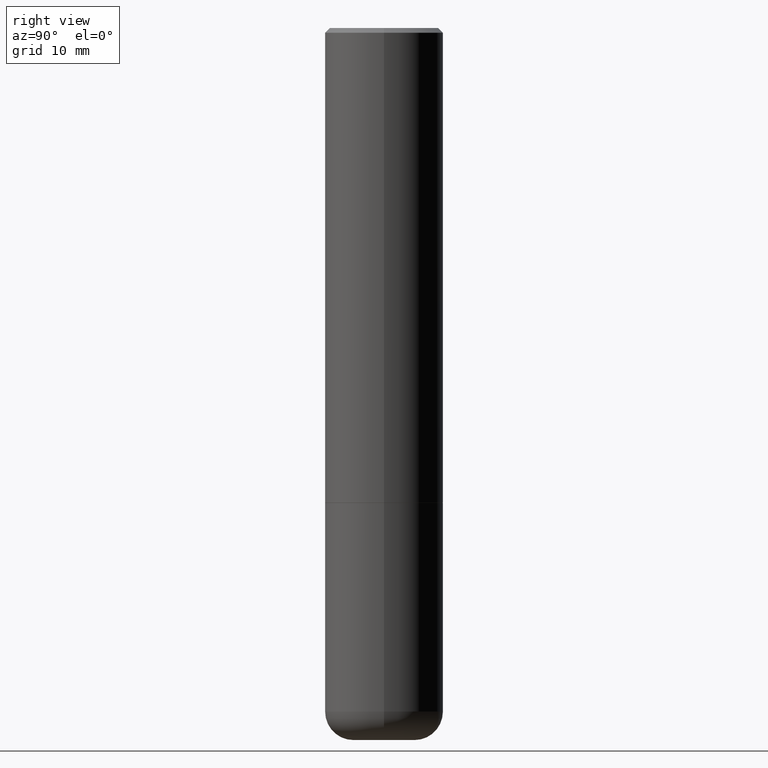
[diagram: clean part render]
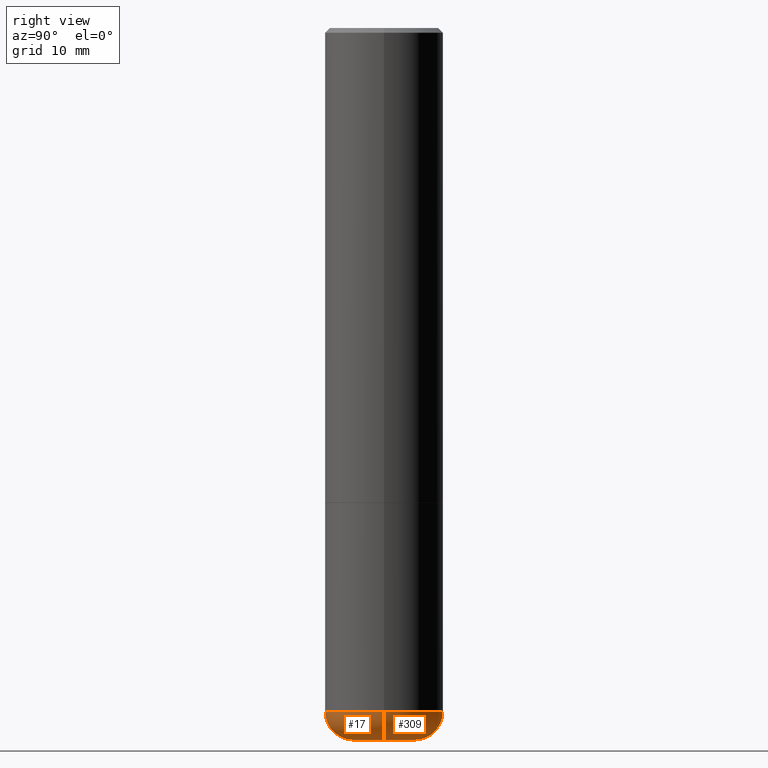
[diagram: same view with one multi-face feature highlighted, each face labeled with its STEP entity id]
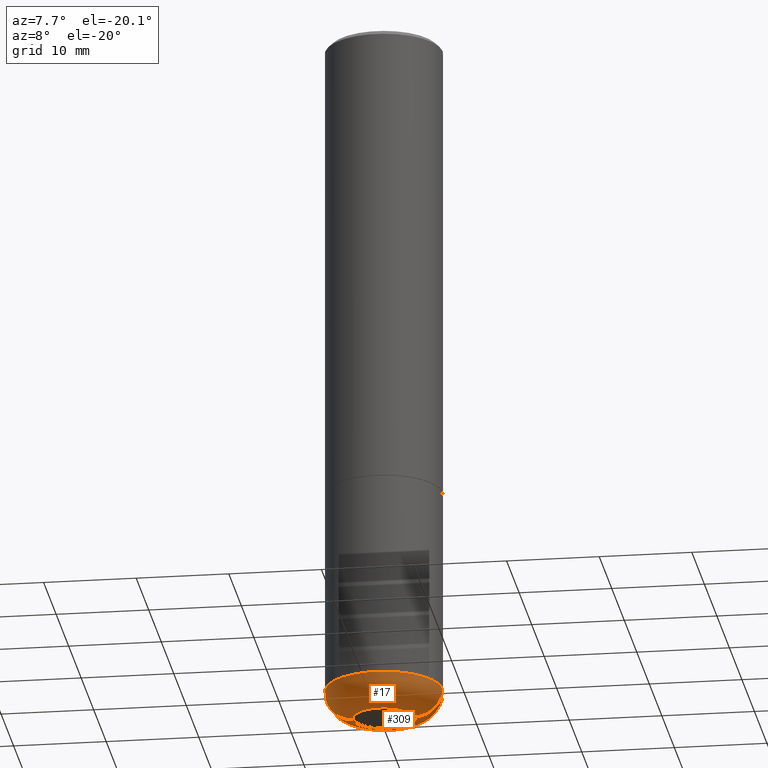
[diagram: same view with one multi-face feature highlighted, each face labeled with its STEP entity id]
A machine part, right view. The highlighted faces form ONE feature: a constant-radius fillet chain: 2 tangent blend faces with common blend radius 3.048 mm. The faces share edges in the B-rep.
A second angle (auxiliary view) of the same feature is appended — it is thin or edge-on in the first view.
Their STEP definitions:
[1] entity #309 (Torus):
#12 = AXIS2_PLACEMENT_3D ( 'NONE', #133, #42, #79 ) ;
#32 = ORIENTED_EDGE ( 'NONE', *, *, #162, .F. ) ;
#41 = EDGE_LOOP ( 'NONE', ( #322, #153, #128, #32 ) ) ;
#42 = DIRECTION ( 'NONE',  ( -2.445468806185136597E-29, 3.491481338843145583E-15, 1.000000000000000000 ) ) ;
#43 = EDGE_CURVE ( 'NONE', #410, #373, #330, .T. ) ;
#44 = CIRCLE ( 'NONE', #343, 0.1300000000000000044 ) ;
#60 = DIRECTION ( 'NONE',  ( 7.105427357601001859E-15, 1.000000000000000000, -3.491481338843145583E-15 ) ) ;
#64 = AXIS2_PLACEMENT_3D ( 'NONE', #236, #60, #183 ) ;
#66 = DIRECTION ( 'NONE',  ( -2.445468806185136597E-29, 3.491481338843145583E-15, 1.000000000000000000 ) ) ;
#79 = DIRECTION ( 'NONE',  ( 1.000000000000000000, -6.982962677686265133E-15, 4.883557194083112340E-29 ) ) ;
#128 = ORIENTED_EDGE ( 'NONE', *, *, #360, .F. ) ;
#133 = CARTESIAN_POINT ( 'NONE',  ( 7.042950161813194609E-29, -1.005546625586826130E-14, -2.880000000000000338 ) ) ;
#144 = TOROIDAL_SURFACE ( 'NONE', #12, 0.1300000000000000044, 0.1199999999999999123 ) ;
#153 = ORIENTED_EDGE ( 'NONE', *, *, #43, .T. ) ;
#160 = VERTEX_POINT ( 'NONE', #255 ) ;
#161 = CIRCLE ( 'NONE', #200, 0.1199999999999999262 ) ;
#162 = EDGE_CURVE ( 'NONE', #286, #160, #161, .T. ) ;
#183 = DIRECTION ( 'NONE',  ( -1.000000000000000000, 7.105427357601003436E-15, 0.000000000000000000 ) ) ;
#198 = CARTESIAN_POINT ( 'NONE',  ( -0.1300000000000000044, -8.914923938254659640E-15, -3.000000000000000444 ) ) ;
#200 = AXIS2_PLACEMENT_3D ( 'NONE', #355, #321, #289 ) ;
#202 = CIRCLE ( 'NONE', #394, 0.2500000000000000000 ) ;
#236 = CARTESIAN_POINT ( 'NONE',  ( -0.1300000000000000044, -9.131760699380130235E-15, -2.880000000000000338 ) ) ;
#248 = EDGE_CURVE ( 'NONE', #286, #410, #44, .T. ) ;
#250 = DIRECTION ( 'NONE',  ( 1.000000000000000000, -6.982962677686273810E-15, 0.000000000000000000 ) ) ;
#255 = CARTESIAN_POINT ( 'NONE',  ( 0.2499999999999999722, -1.180120692528982640E-14, -2.880000000000000338 ) ) ;
#265 = CARTESIAN_POINT ( 'NONE',  ( 7.042950161813194609E-29, -1.005546625586826130E-14, -2.880000000000000338 ) ) ;
#283 = CARTESIAN_POINT ( 'NONE',  ( 7.336406418555409790E-29, -1.047444401652943635E-14, -3.000000000000000444 ) ) ;
#286 = VERTEX_POINT ( 'NONE', #318 ) ;
#289 = DIRECTION ( 'NONE',  ( 1.000000000000000000, -6.982962677686272233E-15, 0.000000000000000000 ) ) ;
#294 = DIRECTION ( 'NONE',  ( -2.445468806185136597E-29, 3.491481338843145583E-15, 1.000000000000000000 ) ) ;
#309 = ADVANCED_FACE ( 'NONE', ( #331 ), #144, .T. ) ;
#318 = CARTESIAN_POINT ( 'NONE',  ( 0.1300000000000000044, -1.138222916462865292E-14, -3.000000000000000444 ) ) ;
#321 = DIRECTION ( 'NONE',  ( -6.982962677686266711E-15, -1.000000000000000000, 3.491481338843145583E-15 ) ) ;
#322 = ORIENTED_EDGE ( 'NONE', *, *, #248, .T. ) ;
#330 = CIRCLE ( 'NONE', #64, 0.1199999999999999262 ) ;
#331 = FACE_OUTER_BOUND ( 'NONE', #41, .T. ) ;
#343 = AXIS2_PLACEMENT_3D ( 'NONE', #283, #66, #250 ) ;
#355 = CARTESIAN_POINT ( 'NONE',  ( 0.1300000000000000044, -1.096325140396747629E-14, -2.880000000000000338 ) ) ;
#360 = EDGE_CURVE ( 'NONE', #160, #373, #202, .T. ) ;
#373 = VERTEX_POINT ( 'NONE', #397 ) ;
#394 = AXIS2_PLACEMENT_3D ( 'NONE', #265, #294, #398 ) ;
#397 = CARTESIAN_POINT ( 'NONE',  ( -0.2499999999999999722, -8.279109416468010833E-15, -2.880000000000000338 ) ) ;
#398 = DIRECTION ( 'NONE',  ( 1.000000000000000000, -6.982962677686262766E-15, 0.000000000000000000 ) ) ;
#410 = VERTEX_POINT ( 'NONE', #198 ) ;
[2] entity #17 (Torus):
#4 = TOROIDAL_SURFACE ( 'NONE', #195, 0.1300000000000000044, 0.1199999999999999123 ) ;
#17 = ADVANCED_FACE ( 'NONE', ( #241 ), #4, .T. ) ;
#20 = ORIENTED_EDGE ( 'NONE', *, *, #47, .F. ) ;
#26 = CARTESIAN_POINT ( 'NONE',  ( 7.336406418555409790E-29, -1.047444401652943635E-14, -3.000000000000000444 ) ) ;
#43 = EDGE_CURVE ( 'NONE', #410, #373, #330, .T. ) ;
#47 = EDGE_CURVE ( 'NONE', #373, #160, #186, .T. ) ;
#54 = CARTESIAN_POINT ( 'NONE',  ( 7.042950161813194609E-29, -1.005546625586826130E-14, -2.880000000000000338 ) ) ;
#59 = EDGE_CURVE ( 'NONE', #410, #286, #284, .T. ) ;
#60 = DIRECTION ( 'NONE',  ( 7.105427357601001859E-15, 1.000000000000000000, -3.491481338843145583E-15 ) ) ;
#64 = AXIS2_PLACEMENT_3D ( 'NONE', #236, #60, #183 ) ;
#87 = DIRECTION ( 'NONE',  ( 1.000000000000000000, -6.982962677686265133E-15, 4.883557194083112340E-29 ) ) ;
#156 = ORIENTED_EDGE ( 'NONE', *, *, #59, .T. ) ;
#160 = VERTEX_POINT ( 'NONE', #255 ) ;
#161 = CIRCLE ( 'NONE', #200, 0.1199999999999999262 ) ;
#162 = EDGE_CURVE ( 'NONE', #286, #160, #161, .T. ) ;
#175 = CARTESIAN_POINT ( 'NONE',  ( 7.042950161813194609E-29, -1.005546625586826130E-14, -2.880000000000000338 ) ) ;
#176 = DIRECTION ( 'NONE',  ( 1.000000000000000000, -6.982962677686262766E-15, 0.000000000000000000 ) ) ;
#183 = DIRECTION ( 'NONE',  ( -1.000000000000000000, 7.105427357601003436E-15, 0.000000000000000000 ) ) ;
#186 = CIRCLE ( 'NONE', #207, 0.2500000000000000000 ) ;
#195 = AXIS2_PLACEMENT_3D ( 'NONE', #175, #273, #87 ) ;
#197 = ORIENTED_EDGE ( 'NONE', *, *, #162, .T. ) ;
#198 = CARTESIAN_POINT ( 'NONE',  ( -0.1300000000000000044, -8.914923938254659640E-15, -3.000000000000000444 ) ) ;
#200 = AXIS2_PLACEMENT_3D ( 'NONE', #355, #321, #289 ) ;
#207 = AXIS2_PLACEMENT_3D ( 'NONE', #54, #305, #176 ) ;
#213 = ORIENTED_EDGE ( 'NONE', *, *, #43, .F. ) ;
#236 = CARTESIAN_POINT ( 'NONE',  ( -0.1300000000000000044, -9.131760699380130235E-15, -2.880000000000000338 ) ) ;
#241 = FACE_OUTER_BOUND ( 'NONE', #320, .T. ) ;
#255 = CARTESIAN_POINT ( 'NONE',  ( 0.2499999999999999722, -1.180120692528982640E-14, -2.880000000000000338 ) ) ;
#256 = AXIS2_PLACEMENT_3D ( 'NONE', #26, #374, #409 ) ;
#273 = DIRECTION ( 'NONE',  ( -2.445468806185136597E-29, 3.491481338843145583E-15, 1.000000000000000000 ) ) ;
#284 = CIRCLE ( 'NONE', #256, 0.1300000000000000044 ) ;
#286 = VERTEX_POINT ( 'NONE', #318 ) ;
#289 = DIRECTION ( 'NONE',  ( 1.000000000000000000, -6.982962677686272233E-15, 0.000000000000000000 ) ) ;
#305 = DIRECTION ( 'NONE',  ( -2.445468806185136597E-29, 3.491481338843145583E-15, 1.000000000000000000 ) ) ;
#318 = CARTESIAN_POINT ( 'NONE',  ( 0.1300000000000000044, -1.138222916462865292E-14, -3.000000000000000444 ) ) ;
#320 = EDGE_LOOP ( 'NONE', ( #213, #156, #197, #20 ) ) ;
#321 = DIRECTION ( 'NONE',  ( -6.982962677686266711E-15, -1.000000000000000000, 3.491481338843145583E-15 ) ) ;
#330 = CIRCLE ( 'NONE', #64, 0.1199999999999999262 ) ;
#355 = CARTESIAN_POINT ( 'NONE',  ( 0.1300000000000000044, -1.096325140396747629E-14, -2.880000000000000338 ) ) ;
#373 = VERTEX_POINT ( 'NONE', #397 ) ;
#374 = DIRECTION ( 'NONE',  ( -2.445468806185136597E-29, 3.491481338843145583E-15, 1.000000000000000000 ) ) ;
#397 = CARTESIAN_POINT ( 'NONE',  ( -0.2499999999999999722, -8.279109416468010833E-15, -2.880000000000000338 ) ) ;
#409 = DIRECTION ( 'NONE',  ( 1.000000000000000000, -6.982962677686273810E-15, 0.000000000000000000 ) ) ;
#410 = VERTEX_POINT ( 'NONE', #198 ) ;